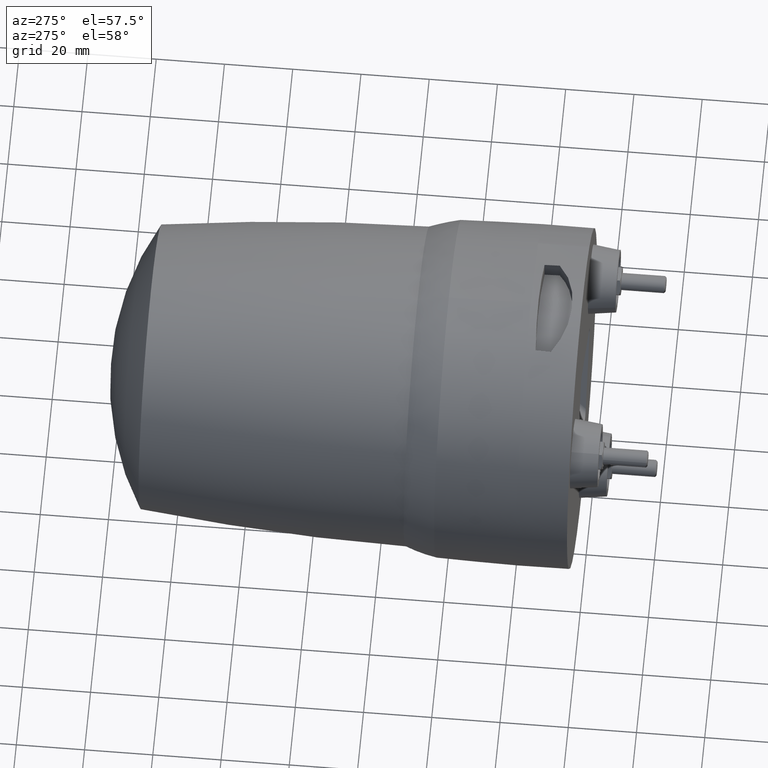
[diagram: clean part render]
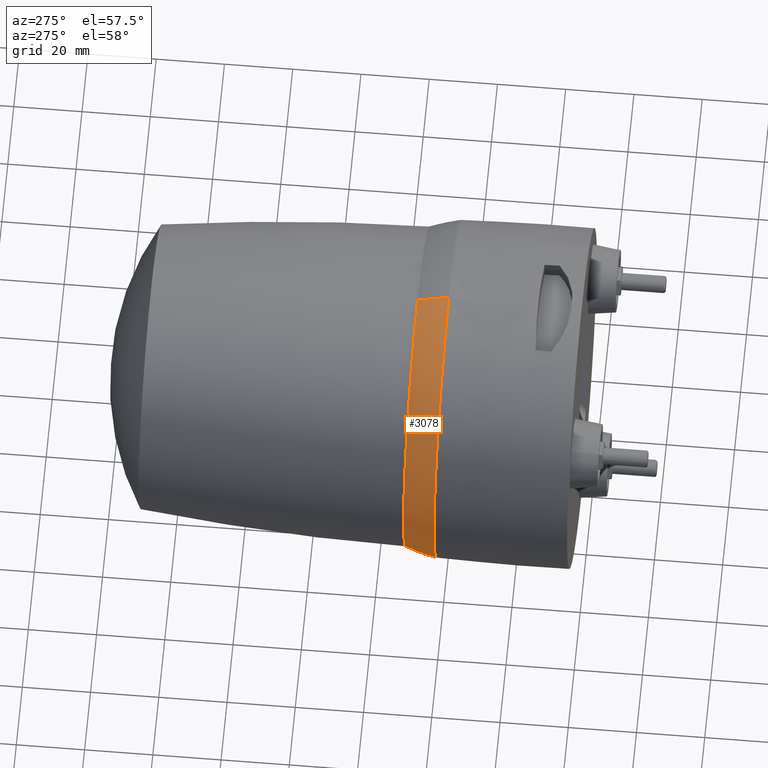
[diagram: same view with one face highlighted and labeled with its STEP entity id]
A machine part, auxiliary view. The second image highlights one B-rep face of the part: STEP entity #3078.
In plain terms, the highlighted toroidal blend (fillet) surface has major radius 143.907 mm and minor (blend) radius 200 mm.
Its self-contained STEP definition (entity closure, byte-faithful):
#155 = ORIENTED_EDGE ( 'NONE', *, *, #1124, .F. ) ;
#774 = ORIENTED_EDGE ( 'NONE', *, *, #6821, .T. ) ;
#901 = VERTEX_POINT ( 'NONE', #7473 ) ;
#1028 = AXIS2_PLACEMENT_3D ( 'NONE', #3698, #8615, #3780 ) ;
#1109 = AXIS2_PLACEMENT_3D ( 'NONE', #2819, #3437, #8181 ) ;
#1124 = EDGE_CURVE ( 'NONE', #2383, #5041, #7051, .T. ) ;
#1325 = CARTESIAN_POINT ( 'NONE',  ( 0.000000000000000000, 51.14189884939369790, -7.307193957557699784E-31 ) ) ;
#1820 = TOROIDAL_SURFACE ( 'NONE', #1109, -143.9070329096475973, 200.0000000000000000 ) ;
#1991 = DIRECTION ( 'NONE',  ( 0.000000000000000000, 0.000000000000000000, -1.000000000000000000 ) ) ;
#2383 = VERTEX_POINT ( 'NONE', #6961 ) ;
#2410 = DIRECTION ( 'NONE',  ( -1.224646799147353207E-16, 0.000000000000000000, 1.000000000000000000 ) ) ;
#2668 = ORIENTED_EDGE ( 'NONE', *, *, #4130, .T. ) ;
#2819 = CARTESIAN_POINT ( 'NONE',  ( 0.000000000000000000, -8.619667775279500788, -7.307193957557699784E-31 ) ) ;
#3026 = DIRECTION ( 'NONE',  ( -1.000000000000000000, 4.877267585892220197E-33, -1.224646799147353207E-16 ) ) ;
#3078 = ADVANCED_FACE ( 'NONE', ( #7471 ), #1820, .T. ) ;
#3141 = AXIS2_PLACEMENT_3D ( 'NONE', #7107, #3026, #2410 ) ;
#3437 = DIRECTION ( 'NONE',  ( 0.000000000000000000, 1.000000000000000000, 3.982591216739360048E-17 ) ) ;
#3698 = CARTESIAN_POINT ( 'NONE',  ( 0.000000000000000000, 41.99999999992949995, 2.015974442758114783E-15 ) ) ;
#3780 = DIRECTION ( 'NONE',  ( 0.000000000000000000, 0.000000000000000000, -1.000000000000000000 ) ) ;
#3880 = DIRECTION ( 'NONE',  ( 1.000000000000000000, -0.000000000000000000, 0.000000000000000000 ) ) ;
#3988 = DIRECTION ( 'NONE',  ( 0.000000000000000000, -1.000000000000000000, 0.000000000000000000 ) ) ;
#4130 = EDGE_CURVE ( 'NONE', #901, #5041, #8565, .T. ) ;
#4571 = ORIENTED_EDGE ( 'NONE', *, *, #6769, .T. ) ;
#5041 = VERTEX_POINT ( 'NONE', #6298 ) ;
#5350 = VERTEX_POINT ( 'NONE', #5876 ) ;
#5497 = AXIS2_PLACEMENT_3D ( 'NONE', #5918, #3880, #5514 ) ;
#5514 = DIRECTION ( 'NONE',  ( 0.000000000000000000, 0.000000000000000000, -1.000000000000000000 ) ) ;
#5630 = EDGE_LOOP ( 'NONE', ( #4571, #774, #2668, #155 ) ) ;
#5876 = CARTESIAN_POINT ( 'NONE',  ( 6.097582448464940108E-15, 41.99999999992949995, 49.58107844172399581 ) ) ;
#5918 = CARTESIAN_POINT ( 'NONE',  ( 0.000000000000000000, -8.619667775279506117, 143.9070329096475973 ) ) ;
#6298 = CARTESIAN_POINT ( 'NONE',  ( 0.000000000000000000, 51.14189884939369790, -46.95562754173349873 ) ) ;
#6595 = AXIS2_PLACEMENT_3D ( 'NONE', #1325, #3988, #1991 ) ;
#6769 = EDGE_CURVE ( 'NONE', #2383, #5350, #7952, .T. ) ;
#6821 = EDGE_CURVE ( 'NONE', #5350, #901, #6966, .T. ) ;
#6961 = CARTESIAN_POINT ( 'NONE',  ( 0.000000000000000000, 41.99999999992949995, -49.58107844172399581 ) ) ;
#6966 = CIRCLE ( 'NONE', #3141, 200.0000000000000000 ) ;
#7051 = CIRCLE ( 'NONE', #5497, 200.0000000000000000 ) ;
#7107 = CARTESIAN_POINT ( 'NONE',  ( 1.762352872275927498E-14, -8.619667775279495459, -143.9070329096475973 ) ) ;
#7471 = FACE_OUTER_BOUND ( 'NONE', #5630, .T. ) ;
#7473 = CARTESIAN_POINT ( 'NONE',  ( -5.911168399144569153E-15, 51.14189884939369790, 46.95562754173349163 ) ) ;
#7952 = CIRCLE ( 'NONE', #1028, 49.58107844172399581 ) ;
#8181 = DIRECTION ( 'NONE',  ( 0.000000000000000000, 3.982591216739360048E-17, -1.000000000000000000 ) ) ;
#8565 = CIRCLE ( 'NONE', #6595, 46.95562754173349873 ) ;
#8615 = DIRECTION ( 'NONE',  ( 0.000000000000000000, 1.000000000000000000, 0.000000000000000000 ) ) ;